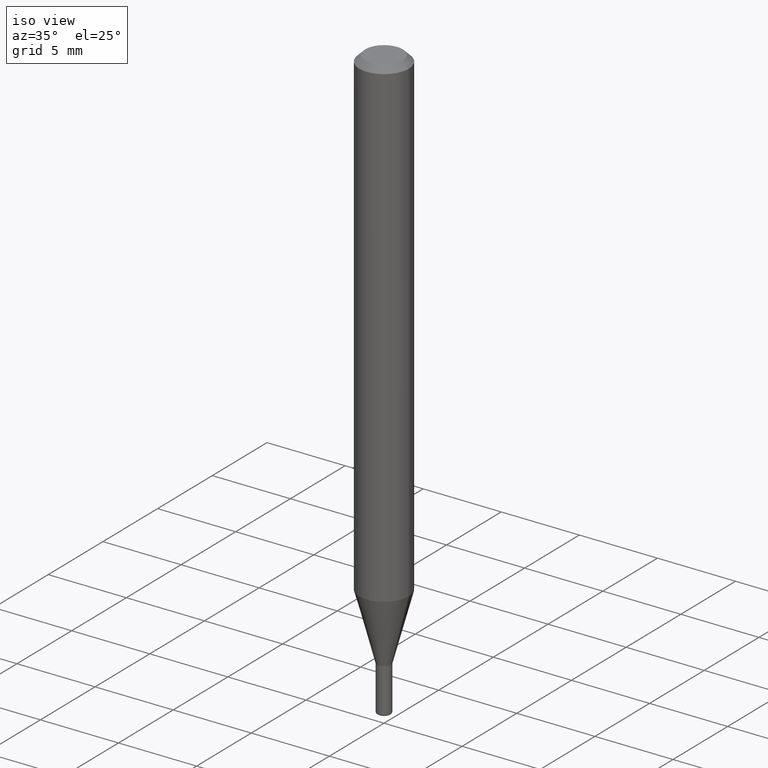
[diagram: clean part render]
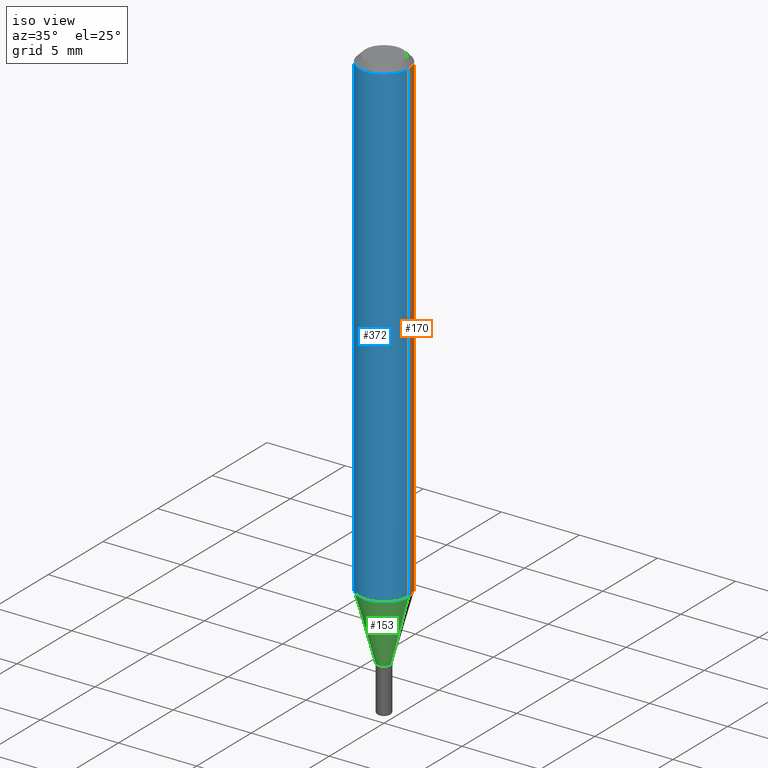
[diagram: same view with three faces highlighted in distinct colors, each labeled with its STEP entity id]
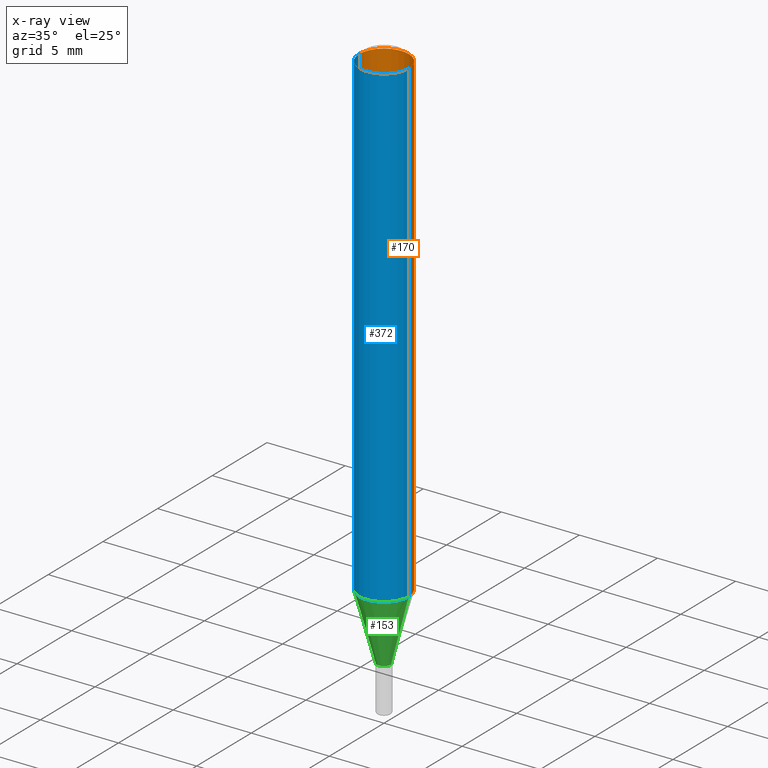
[diagram: x-ray of the same camera — body ghosted, the three highlighted faces saturated]
A machine part, iso view with three faces highlighted in distinct colors.
The next image is the same camera in x-ray (body ghosted, the three faces saturated) — at least one of them is partly hidden behind the body in this view.
Their STEP definitions:

[orange] entity #170 — the highlighted cylindrical surface (edge-blend (fillet) strip) has radius 1.5875 mm, axis along (-0, 0, 1).
#11 = CARTESIAN_POINT ( 'NONE',  ( -0.06250000000000000000, -3.805245085686841620E-15, -1.217057713659401186 ) ) ;
#21 = EDGE_LOOP ( 'NONE', ( #437, #454, #518, #132 ) ) ;
#48 = CIRCLE ( 'NONE', #159, 0.06250000000000000000 ) ;
#52 = CARTESIAN_POINT ( 'NONE',  ( 3.668203209277632395E-31, -5.237222008264614861E-17, -0.01499999999999970281 ) ) ;
#59 = VERTEX_POINT ( 'NONE', #11 ) ;
#69 = DIRECTION ( 'NONE',  ( -2.445468806185136877E-29, 3.491481338843145188E-15, 1.000000000000000000 ) ) ;
#112 = EDGE_CURVE ( 'NONE', #155, #59, #219, .T. ) ;
#132 = ORIENTED_EDGE ( 'NONE', *, *, #205, .F. ) ;
#139 = DIRECTION ( 'NONE',  ( -2.445468806185136597E-29, 3.491481338843145583E-15, 1.000000000000000000 ) ) ;
#155 = VERTEX_POINT ( 'NONE', #183 ) ;
#159 = AXIS2_PLACEMENT_3D ( 'NONE', #52, #332, #420 ) ;
#169 = VERTEX_POINT ( 'NONE', #349 ) ;
#170 = ADVANCED_FACE ( 'NONE', ( #186 ), #511, .T. ) ;
#183 = CARTESIAN_POINT ( 'NONE',  ( 0.06250000000000000000, -4.685769462892295905E-15, -1.217057713659401186 ) ) ;
#186 = FACE_OUTER_BOUND ( 'NONE', #21, .T. ) ;
#204 = AXIS2_PLACEMENT_3D ( 'NONE', #505, #139, #466 ) ;
#205 = EDGE_CURVE ( 'NONE', #155, #215, #425, .T. ) ;
#215 = VERTEX_POINT ( 'NONE', #357 ) ;
#219 = CIRCLE ( 'NONE', #274, 0.06250000000000000000 ) ;
#222 = DIRECTION ( 'NONE',  ( -2.445468806185136597E-29, 3.491481338843145583E-15, 1.000000000000000000 ) ) ;
#226 = DIRECTION ( 'NONE',  ( 1.000000000000000000, -6.982962677686270655E-15, 0.000000000000000000 ) ) ;
#264 = CARTESIAN_POINT ( 'NONE',  ( 2.976276674081067684E-29, -4.249334295536904236E-15, -1.217057713659401186 ) ) ;
#274 = AXIS2_PLACEMENT_3D ( 'NONE', #264, #222, #226 ) ;
#294 = DIRECTION ( 'NONE',  ( -2.445468806185136877E-29, 3.491481338843145188E-15, 1.000000000000000000 ) ) ;
#332 = DIRECTION ( 'NONE',  ( -2.445468806185136597E-29, 3.491481338843145583E-15, 1.000000000000000000 ) ) ;
#336 = LINE ( 'NONE', #453, #355 ) ;
#345 = VECTOR ( 'NONE', #69, 39.37007874015748143 ) ;
#349 = CARTESIAN_POINT ( 'NONE',  ( -0.06250000000000000000, -1.706764047959712450E-15, -0.01499999999999970281 ) ) ;
#355 = VECTOR ( 'NONE', #294, 39.37007874015748143 ) ;
#357 = CARTESIAN_POINT ( 'NONE',  ( 0.06250000000000000000, -4.888073874380378612E-16, -0.01499999999999970281 ) ) ;
#393 = CARTESIAN_POINT ( 'NONE',  ( 0.06250000000000000000, -4.364351673553916694E-16, 3.047610484872459871E-30 ) ) ;
#405 = EDGE_CURVE ( 'NONE', #59, #169, #336, .T. ) ;
#420 = DIRECTION ( 'NONE',  ( 1.000000000000000000, -6.982962677686266711E-15, 0.000000000000000000 ) ) ;
#425 = LINE ( 'NONE', #393, #345 ) ;
#437 = ORIENTED_EDGE ( 'NONE', *, *, #112, .T. ) ;
#453 = CARTESIAN_POINT ( 'NONE',  ( -0.06250000000000000000, 4.440892098500626162E-16, -3.074334431409316114E-30 ) ) ;
#454 = ORIENTED_EDGE ( 'NONE', *, *, #405, .T. ) ;
#462 = EDGE_CURVE ( 'NONE', #215, #169, #48, .T. ) ;
#466 = DIRECTION ( 'NONE',  ( 1.000000000000000000, -6.982962677686266711E-15, 4.876176775795935793E-29 ) ) ;
#505 = CARTESIAN_POINT ( 'NONE',  ( 0.000000000000000000, 0.000000000000000000, 0.000000000000000000 ) ) ;
#511 = CYLINDRICAL_SURFACE ( 'NONE', #204, 0.06250000000000000000 ) ;
#518 = ORIENTED_EDGE ( 'NONE', *, *, #462, .F. ) ;

[blue] entity #372 — the highlighted cylindrical surface (edge-blend (fillet) strip) has radius 1.5875 mm, axis along (-0, 0, 1).
#3 = DIRECTION ( 'NONE',  ( -2.445468806185136597E-29, 3.491481338843145583E-15, 1.000000000000000000 ) ) ;
#11 = CARTESIAN_POINT ( 'NONE',  ( -0.06250000000000000000, -3.805245085686841620E-15, -1.217057713659401186 ) ) ;
#34 = AXIS2_PLACEMENT_3D ( 'NONE', #368, #3, #157 ) ;
#51 = EDGE_CURVE ( 'NONE', #169, #215, #203, .T. ) ;
#59 = VERTEX_POINT ( 'NONE', #11 ) ;
#61 = DIRECTION ( 'NONE',  ( -2.445468806185136597E-29, 3.491481338843145583E-15, 1.000000000000000000 ) ) ;
#69 = DIRECTION ( 'NONE',  ( -2.445468806185136877E-29, 3.491481338843145188E-15, 1.000000000000000000 ) ) ;
#124 = CIRCLE ( 'NONE', #221, 0.06250000000000000000 ) ;
#155 = VERTEX_POINT ( 'NONE', #183 ) ;
#157 = DIRECTION ( 'NONE',  ( 1.000000000000000000, -6.982962677686266711E-15, 4.876176775795935793E-29 ) ) ;
#169 = VERTEX_POINT ( 'NONE', #349 ) ;
#183 = CARTESIAN_POINT ( 'NONE',  ( 0.06250000000000000000, -4.685769462892295905E-15, -1.217057713659401186 ) ) ;
#194 = ORIENTED_EDGE ( 'NONE', *, *, #205, .T. ) ;
#199 = FACE_OUTER_BOUND ( 'NONE', #446, .T. ) ;
#203 = CIRCLE ( 'NONE', #500, 0.06250000000000000000 ) ;
#205 = EDGE_CURVE ( 'NONE', #155, #215, #425, .T. ) ;
#207 = DIRECTION ( 'NONE',  ( -2.445468806185136597E-29, 3.491481338843145583E-15, 1.000000000000000000 ) ) ;
#215 = VERTEX_POINT ( 'NONE', #357 ) ;
#221 = AXIS2_PLACEMENT_3D ( 'NONE', #273, #61, #347 ) ;
#227 = EDGE_CURVE ( 'NONE', #59, #155, #124, .T. ) ;
#273 = CARTESIAN_POINT ( 'NONE',  ( 2.976276674081067684E-29, -4.249334295536904236E-15, -1.217057713659401186 ) ) ;
#275 = CYLINDRICAL_SURFACE ( 'NONE', #34, 0.06250000000000000000 ) ;
#294 = DIRECTION ( 'NONE',  ( -2.445468806185136877E-29, 3.491481338843145188E-15, 1.000000000000000000 ) ) ;
#325 = ORIENTED_EDGE ( 'NONE', *, *, #405, .F. ) ;
#336 = LINE ( 'NONE', #453, #355 ) ;
#341 = DIRECTION ( 'NONE',  ( 1.000000000000000000, -6.982962677686266711E-15, 0.000000000000000000 ) ) ;
#345 = VECTOR ( 'NONE', #69, 39.37007874015748143 ) ;
#347 = DIRECTION ( 'NONE',  ( 1.000000000000000000, -6.982962677686270655E-15, 0.000000000000000000 ) ) ;
#349 = CARTESIAN_POINT ( 'NONE',  ( -0.06250000000000000000, -1.706764047959712450E-15, -0.01499999999999970281 ) ) ;
#355 = VECTOR ( 'NONE', #294, 39.37007874015748143 ) ;
#357 = CARTESIAN_POINT ( 'NONE',  ( 0.06250000000000000000, -4.888073874380378612E-16, -0.01499999999999970281 ) ) ;
#368 = CARTESIAN_POINT ( 'NONE',  ( 0.000000000000000000, 0.000000000000000000, 0.000000000000000000 ) ) ;
#371 = ORIENTED_EDGE ( 'NONE', *, *, #51, .F. ) ;
#372 = ADVANCED_FACE ( 'NONE', ( #199 ), #275, .T. ) ;
#393 = CARTESIAN_POINT ( 'NONE',  ( 0.06250000000000000000, -4.364351673553916694E-16, 3.047610484872459871E-30 ) ) ;
#405 = EDGE_CURVE ( 'NONE', #59, #169, #336, .T. ) ;
#425 = LINE ( 'NONE', #393, #345 ) ;
#444 = ORIENTED_EDGE ( 'NONE', *, *, #227, .T. ) ;
#446 = EDGE_LOOP ( 'NONE', ( #325, #444, #194, #371 ) ) ;
#453 = CARTESIAN_POINT ( 'NONE',  ( -0.06250000000000000000, 4.440892098500626162E-16, -3.074334431409316114E-30 ) ) ;
#461 = CARTESIAN_POINT ( 'NONE',  ( 3.668203209277632395E-31, -5.237222008264614861E-17, -0.01499999999999970281 ) ) ;
#500 = AXIS2_PLACEMENT_3D ( 'NONE', #461, #207, #341 ) ;

[green] entity #153 — the highlighted conical surface has half-angle 15 deg.
#11 = CARTESIAN_POINT ( 'NONE',  ( -0.06250000000000000000, -3.805245085686841620E-15, -1.217057713659401186 ) ) ;
#16 = LINE ( 'NONE', #119, #65 ) ;
#23 = CARTESIAN_POINT ( 'NONE',  ( -0.01750000000000008146, -4.258300880613290869E-15, -1.385000000000000453 ) ) ;
#33 = CONICAL_SURFACE ( 'NONE', #328, 0.01750000000000008146, 0.2617993877991494633 ) ;
#49 = LINE ( 'NONE', #489, #364 ) ;
#53 = ORIENTED_EDGE ( 'NONE', *, *, #498, .T. ) ;
#57 = VERTEX_POINT ( 'NONE', #497 ) ;
#59 = VERTEX_POINT ( 'NONE', #11 ) ;
#61 = DIRECTION ( 'NONE',  ( -2.445468806185136597E-29, 3.491481338843145583E-15, 1.000000000000000000 ) ) ;
#65 = VECTOR ( 'NONE', #210, 39.37007874015748854 ) ;
#80 = ORIENTED_EDGE ( 'NONE', *, *, #137, .T. ) ;
#82 = EDGE_LOOP ( 'NONE', ( #242, #80, #53, #409 ) ) ;
#101 = DIRECTION ( 'NONE',  ( -2.445468806185136597E-29, 3.491481338843145583E-15, 1.000000000000000000 ) ) ;
#108 = VERTEX_POINT ( 'NONE', #23 ) ;
#119 = CARTESIAN_POINT ( 'NONE',  ( -0.01750000000000008146, -4.711356675539740119E-15, -1.385000000000000453 ) ) ;
#124 = CIRCLE ( 'NONE', #221, 0.06250000000000000000 ) ;
#136 = DIRECTION ( 'NONE',  ( -2.445468806185136597E-29, 3.491481338843145583E-15, 1.000000000000000000 ) ) ;
#137 = EDGE_CURVE ( 'NONE', #108, #57, #236, .T. ) ;
#147 = DIRECTION ( 'NONE',  ( 1.000000000000000000, -6.982962677686272233E-15, 0.000000000000000000 ) ) ;
#153 = ADVANCED_FACE ( 'NONE', ( #512 ), #33, .T. ) ;
#155 = VERTEX_POINT ( 'NONE', #183 ) ;
#180 = DIRECTION ( 'NONE',  ( 1.000000000000000000, -6.982962677686272233E-15, 0.000000000000000000 ) ) ;
#183 = CARTESIAN_POINT ( 'NONE',  ( 0.06250000000000000000, -4.685769462892295905E-15, -1.217057713659401186 ) ) ;
#210 = DIRECTION ( 'NONE',  ( -0.2588190451025207395, 5.211531920934546309E-15, 0.9659258262890682012 ) ) ;
#221 = AXIS2_PLACEMENT_3D ( 'NONE', #273, #61, #347 ) ;
#227 = EDGE_CURVE ( 'NONE', #59, #155, #124, .T. ) ;
#236 = CIRCLE ( 'NONE', #362, 0.01750000000000008146 ) ;
#242 = ORIENTED_EDGE ( 'NONE', *, *, #476, .F. ) ;
#273 = CARTESIAN_POINT ( 'NONE',  ( 2.976276674081067684E-29, -4.249334295536904236E-15, -1.217057713659401186 ) ) ;
#328 = AXIS2_PLACEMENT_3D ( 'NONE', #431, #136, #180 ) ;
#347 = DIRECTION ( 'NONE',  ( 1.000000000000000000, -6.982962677686270655E-15, 0.000000000000000000 ) ) ;
#362 = AXIS2_PLACEMENT_3D ( 'NONE', #468, #101, #147 ) ;
#364 = VECTOR ( 'NONE', #449, 39.37007874015748854 ) ;
#409 = ORIENTED_EDGE ( 'NONE', *, *, #227, .F. ) ;
#431 = CARTESIAN_POINT ( 'NONE',  ( 3.386974296566414926E-29, -4.835701654297758156E-15, -1.385000000000000453 ) ) ;
#449 = DIRECTION ( 'NONE',  ( 0.2588190451025207395, 1.565188264969626109E-15, 0.9659258262890682012 ) ) ;
#468 = CARTESIAN_POINT ( 'NONE',  ( 3.386974296566414926E-29, -4.835701654297758156E-15, -1.385000000000000453 ) ) ;
#476 = EDGE_CURVE ( 'NONE', #108, #59, #16, .T. ) ;
#489 = CARTESIAN_POINT ( 'NONE',  ( 0.01750000000000008146, -4.957903501157268139E-15, -1.385000000000000453 ) ) ;
#497 = CARTESIAN_POINT ( 'NONE',  ( 0.01750000000000008146, -4.957903501157268139E-15, -1.385000000000000453 ) ) ;
#498 = EDGE_CURVE ( 'NONE', #57, #155, #49, .T. ) ;
#512 = FACE_OUTER_BOUND ( 'NONE', #82, .T. ) ;